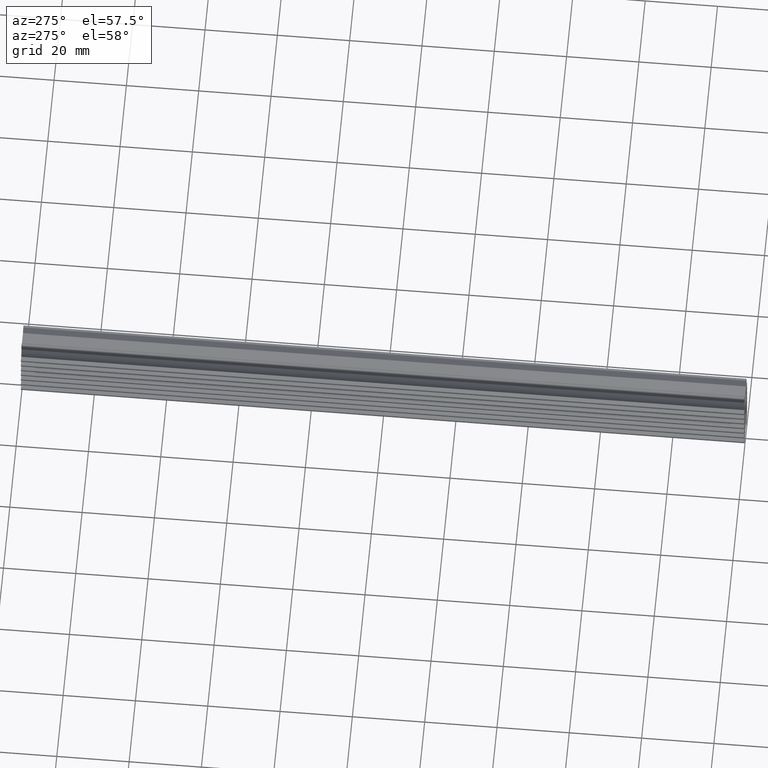
[diagram: clean part render]
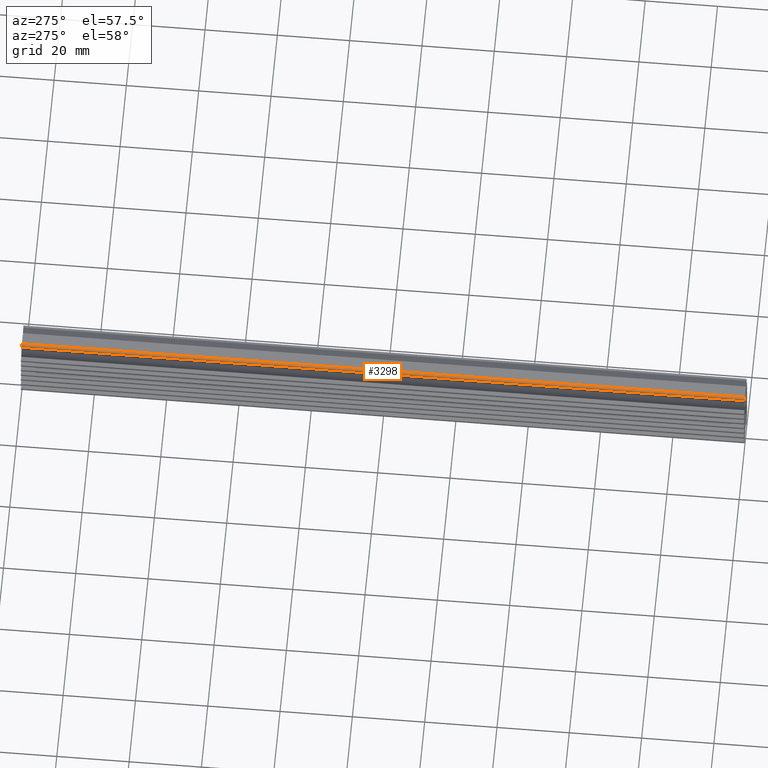
[diagram: same view with one face highlighted and labeled with its STEP entity id]
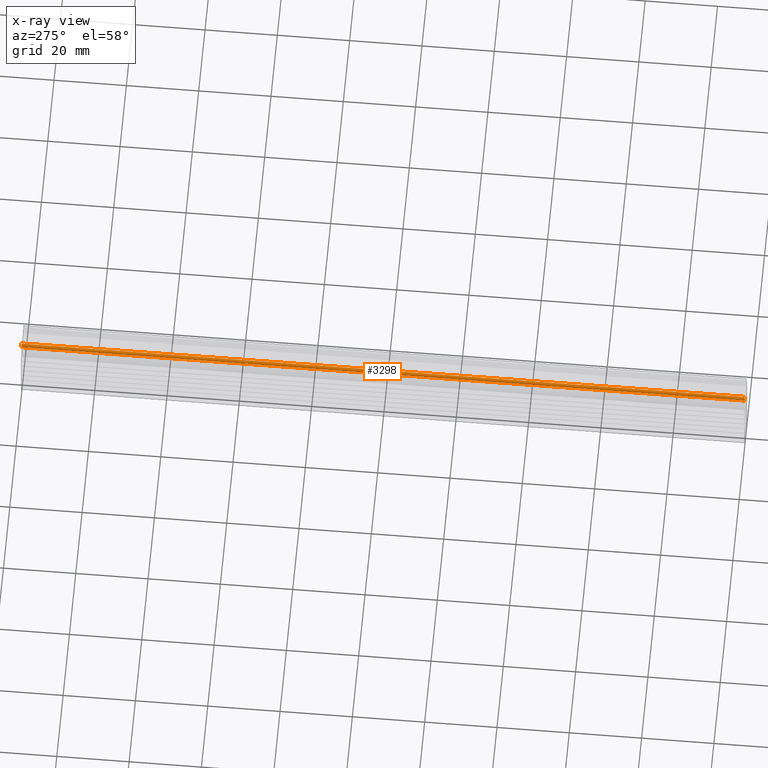
[diagram: x-ray of the same camera — body ghosted, the highlighted face saturated]
A machine part, auxiliary view. The second image highlights one B-rep face of the part: STEP entity #3298.
The next image is the same camera in x-ray: the body ghosted, the highlighted face saturated — about 0% of this face is hidden behind the body in this view.
In plain terms, the highlighted face is a freeform B-spline surface patch.
Its self-contained STEP definition (entity closure, byte-faithful):
#65=CARTESIAN_POINT('',(-2.607942751445510,0.0,1.210308095053960));
#66=VERTEX_POINT('',#65);
#72=CARTESIAN_POINT('',(-3.482962913144505,0.0,0.770590477448821));
#73=VERTEX_POINT('',#72);
#74=CARTESIAN_POINT('',(-2.607942751445510,0.0,1.210308095053960));
#75=CARTESIAN_POINT('',(-2.860660747034997,0.0,1.529603413449636));
#76=CARTESIAN_POINT('',(-3.224508030528348,0.0,1.346761842851831));
#77=CARTESIAN_POINT('',(-3.588355314021700,0.0,1.163920272254025));
#78=CARTESIAN_POINT('',(-3.482962913144505,0.0,0.770590477448821));
#86=(BOUNDED_CURVE()B_SPLINE_CURVE(2,(#74,#75,#76,#77,#78),.UNSPECIFIED.,.F.,.U.)B_SPLINE_CURVE_WITH_KNOTS((3,2,3),(0.0,0.500000000000000,1.0),.UNSPECIFIED.)CURVE()GEOMETRIC_REPRESENTATION_ITEM()RATIONAL_B_SPLINE_CURVE((1.0,0.775388696939464,1.0,0.775388696939464,1.0))REPRESENTATION_ITEM(''));
#87=EDGE_CURVE('',#66,#73,#86,.T.);
#1535=CARTESIAN_POINT('',(-3.482962913144505,200.0,0.770590477448821));
#1536=VERTEX_POINT('',#1535);
#1542=CARTESIAN_POINT('',(-2.607942751445510,200.0,1.210308095053960));
#1543=VERTEX_POINT('',#1542);
#1544=CARTESIAN_POINT('',(-2.607942751445572,200.0,1.210308095053911));
#1545=CARTESIAN_POINT('',(-2.860660747034997,200.000000000000060,1.529603413449636));
#1546=CARTESIAN_POINT('',(-3.224508030528348,200.0,1.346761842851831));
#1547=CARTESIAN_POINT('',(-3.588355314021700,200.000000000000060,1.163920272254025));
#1548=CARTESIAN_POINT('',(-3.482962913144530,200.0,0.770590477448815));
#1556=(BOUNDED_CURVE()B_SPLINE_CURVE(2,(#1544,#1545,#1546,#1547,#1548),.UNSPECIFIED.,.F.,.U.)B_SPLINE_CURVE_WITH_KNOTS((3,2,3),(0.0,0.500000000000000,1.0),.UNSPECIFIED.)CURVE()GEOMETRIC_REPRESENTATION_ITEM()RATIONAL_B_SPLINE_CURVE((1.0,0.775388696939464,1.0,0.775388696939464,1.0))REPRESENTATION_ITEM(''));
#1557=EDGE_CURVE('',#1543,#1536,#1556,.T.);
#3260=CARTESIAN_POINT('',(-3.482962913144505,200.0,0.770590477448821));
#3261=CARTESIAN_POINT('',(-3.482962913144505,0.0,0.770590477448821));
#3262=QUASI_UNIFORM_CURVE('',1,(#3260,#3261),.UNSPECIFIED.,.F.,.U.);
#3263=EDGE_CURVE('',#1536,#73,#3262,.T.);
#3270=CARTESIAN_POINT('',(-3.478505249209440,205.0,0.754973359416331));
#3271=CARTESIAN_POINT('',(-3.478505249209440,-5.125000000000000,0.754973359416331));
#3272=CARTESIAN_POINT('',(-3.603468197549677,205.000000000000030,1.167279860461952));
#3273=CARTESIAN_POINT('',(-3.603468197549677,-5.125000000000001,1.167279860461952));
#3274=CARTESIAN_POINT('',(-3.214161227255501,205.0,1.351812979827384));
#3275=CARTESIAN_POINT('',(-3.214161227255501,-5.125000000000000,1.351812979827384));
#3276=CARTESIAN_POINT('',(-2.824854256961326,205.000000000000030,1.536346099192816));
#3277=CARTESIAN_POINT('',(-2.824854256961326,-5.125000000000001,1.536346099192816));
#3278=CARTESIAN_POINT('',(-2.584804840565421,205.0,1.178591061561824));
#3279=CARTESIAN_POINT('',(-2.584804840565421,-5.125000000000000,1.178591061561824));
#3287=(BOUNDED_SURFACE()B_SPLINE_SURFACE(1,2,((#3270,#3272,#3274,#3276,#3278),(#3271,#3273,#3275,#3277,#3279)),.UNSPECIFIED.,.F.,.F.,.U.)B_SPLINE_SURFACE_WITH_KNOTS((2,2),(3,2,3),(0.0,210.125000000000000),(0.0,1.0,2.0),.UNSPECIFIED.)GEOMETRIC_REPRESENTATION_ITEM()RATIONAL_B_SPLINE_SURFACE(((1.0,0.757564984384050,1.0,0.757564984384050,1.0),(1.0,0.757564984384050,1.0,0.757564984384050,1.0)))REPRESENTATION_ITEM('')SURFACE());
#3288=ORIENTED_EDGE('',*,*,#87,.F.);
#3289=CARTESIAN_POINT('',(-2.607942751445510,200.0,1.210308095053960));
#3290=CARTESIAN_POINT('',(-2.607942751445510,0.0,1.210308095053960));
#3291=QUASI_UNIFORM_CURVE('',1,(#3289,#3290),.UNSPECIFIED.,.F.,.U.);
#3292=EDGE_CURVE('',#1543,#66,#3291,.T.);
#3293=ORIENTED_EDGE('',*,*,#3292,.F.);
#3294=ORIENTED_EDGE('',*,*,#1557,.T.);
#3295=ORIENTED_EDGE('',*,*,#3263,.T.);
#3296=EDGE_LOOP('',(#3288,#3293,#3294,#3295));
#3297=FACE_OUTER_BOUND('',#3296,.T.);
#3298=ADVANCED_FACE('',(#3297),#3287,.T.);